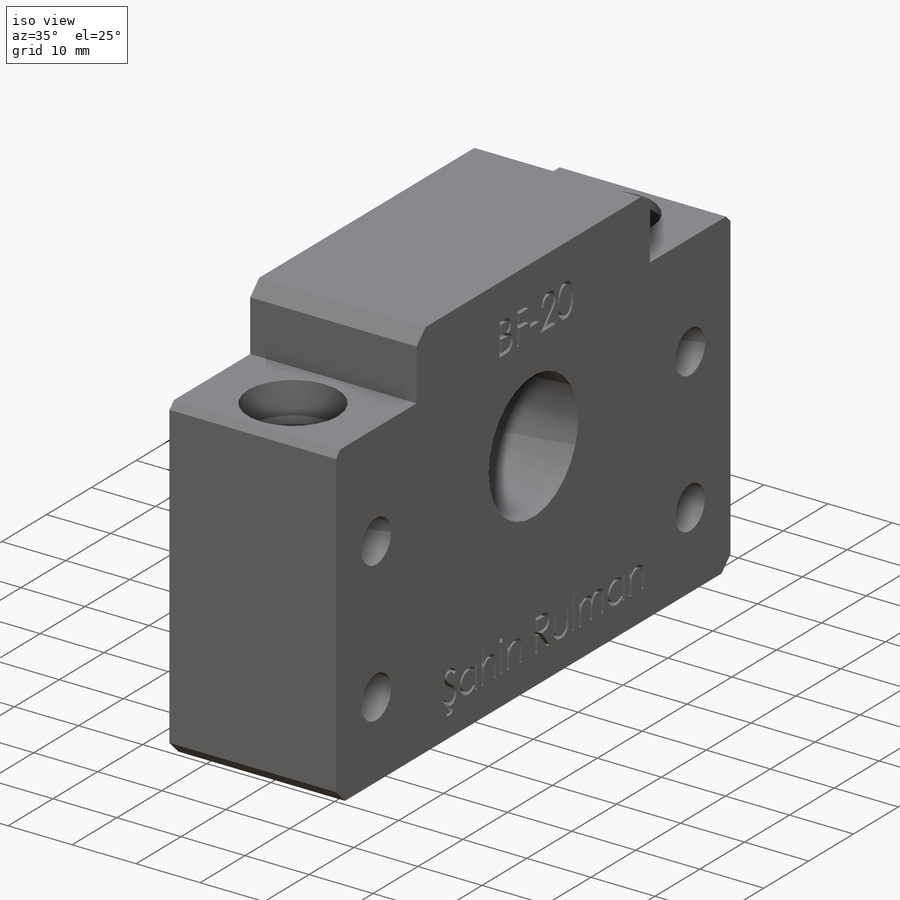
[diagram: iso view]
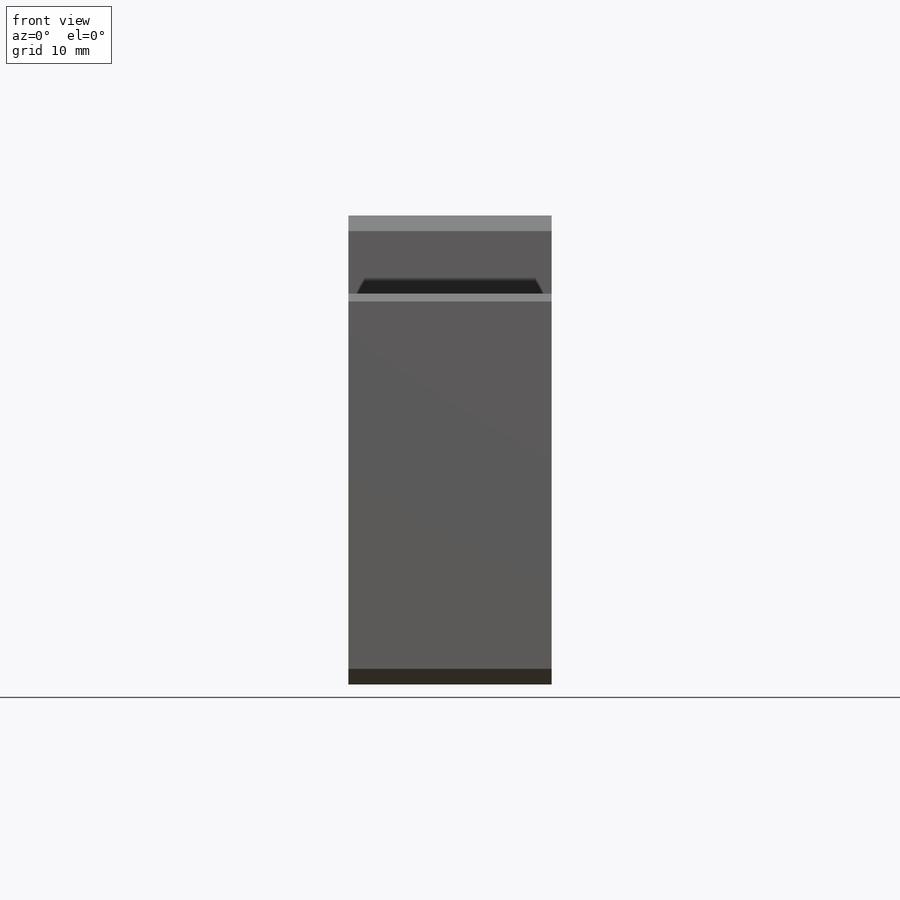
[diagram: front view]
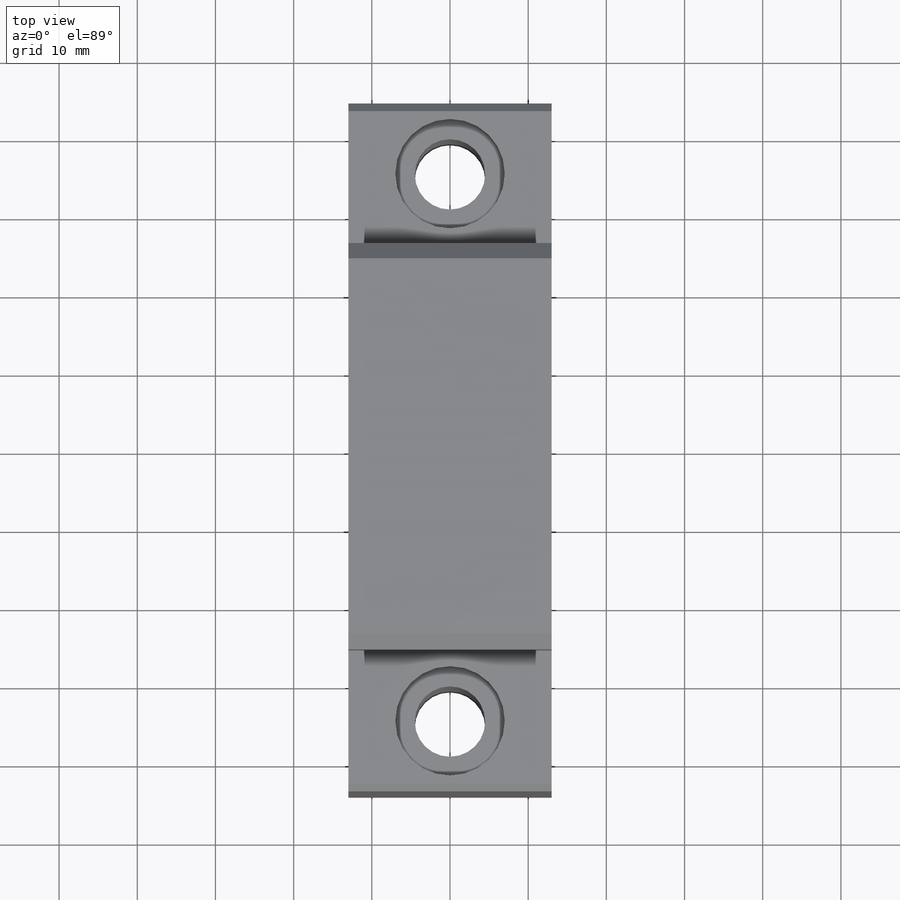
[diagram: top view]
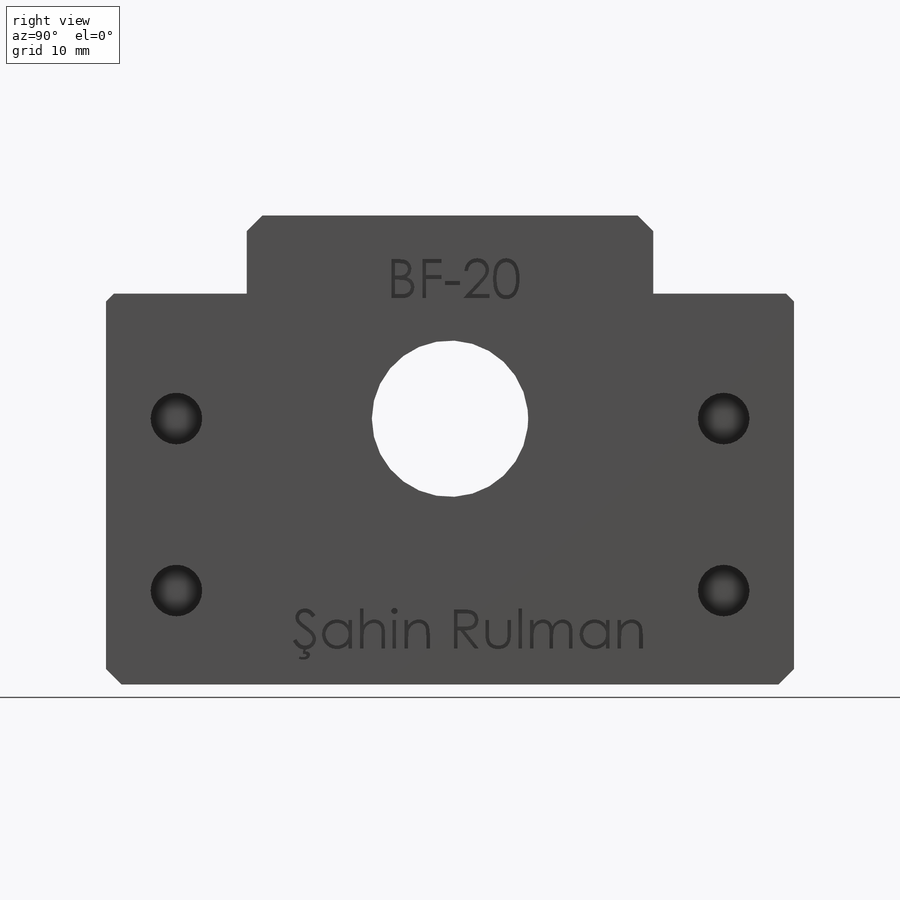
[diagram: right view]
SOLIDWORKS PART (.sldprt)
format: sldprt  version: not decoded by parser v0  size: 538,112 bytes
history: native  units: mm
features: sketch x6, cut_extrude x5, chamfer x2, material x1, extrude x1 (+11 scaffold rows collapsed)
feature tree (26):
  scaffold x11  (default folders/planes/origin — collapsed)
  material  "Material <not specified>"
  sketch  "Sketch1"  dims[D8=20.0mm D1=52.0mm D2=26.0mm D3=88.0mm D4=44.0mm D5=60.0mm D6=50.0mm D7=50.0mm D9=34.0mm]
  extrude  "Boss-Extrude1"  Depth=26mm
  chamfer  "Chamfer1"  Distance=2mm Angle=45deg
  chamfer  "Chamfer2"  Distance=1mm Angle=45deg
  sketch  "Sketch2"  dims[D3=14.0mm D4=14.0mm D1=35.0mm D2=35.0mm]
  cut_extrude  "Cut-Extrude1"  Depth=5mm
  sketch  "Sketch3"  dims[D1=9.0mm D2=9.0mm]
  cut_extrude  "Cut-Extrude2"  [1 undecoded]
  sketch  "Sketch4"  dims[D1=6.6mm D3=6.6mm D2=35.0mm D4=70.0mm D5=70.0mm D6=35.0mm]
  cut_extrude  "Cut-Extrude13"  Depth=6.6mm
  sketch  "Sketch5"
  cut_extrude  "Cut-Extrude14"  Depth=2mm
  sketch  "Sketch6"
  cut_extrude  "Cut-Extrude15"  Depth=2mm
decode coverage: 11 of 14 modeling features carry decoded parameters
note: 1 parameter value undecoded
note: suppression state not decoded; provenance and decode notes live in map.json
